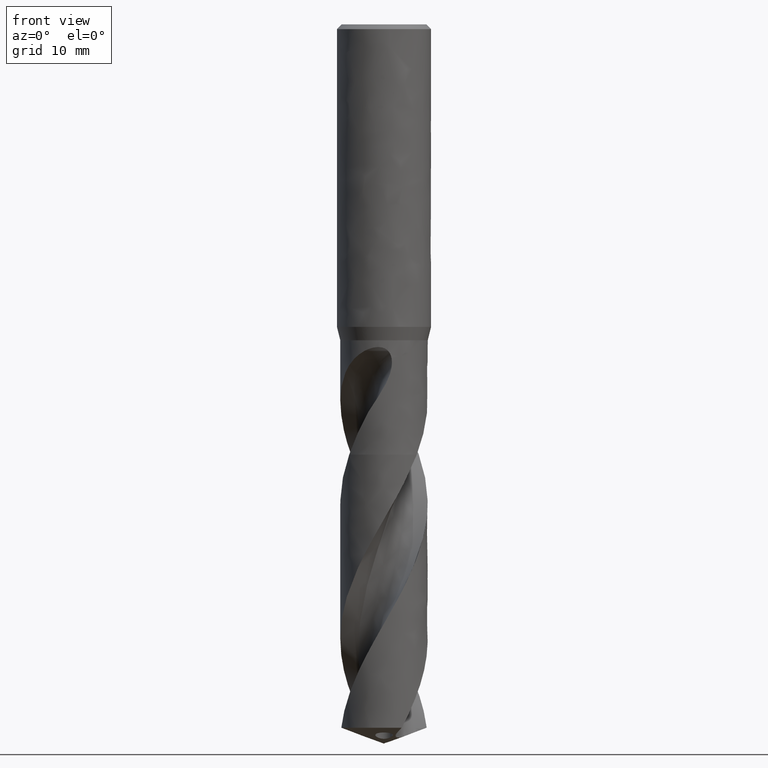
[diagram: clean part render]
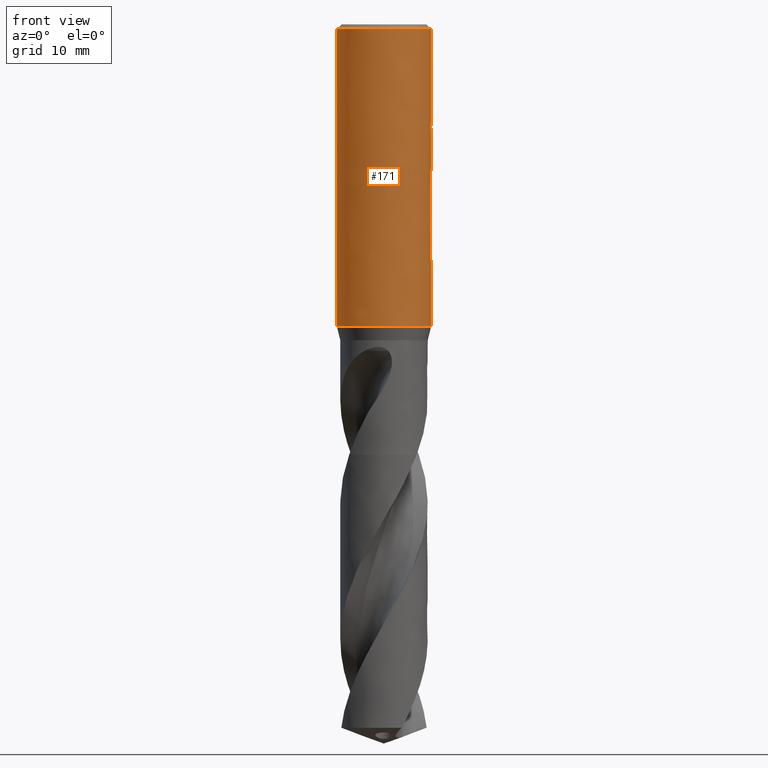
[diagram: same view with one face highlighted and labeled with its STEP entity id]
A machine part, front view. The second image highlights one B-rep face of the part: STEP entity #171.
In plain terms, the highlighted face is a freeform B-spline surface patch.
Its self-contained STEP definition (entity closure, byte-faithful):
#73 = VERTEX_POINT('', #74);
#74 = CARTESIAN_POINT('', (-7., 3.18408167778312E-15, -45.));
#82 = EDGE_CURVE('', #73, #73, #83, .T.);
#83 = CIRCLE('', #84, 7.);
#84 = AXIS2_PLACEMENT_3D('', #85, #86, #87);
#85 = CARTESIAN_POINT('', (1.68722975549459E-31, 2.75545529808154E-15, -45.));
#86 = DIRECTION('', (3.74939945665464E-33, 6.12323399573677E-17, -1.));
#87 = DIRECTION('', (-1., 6.12323399573677E-17, 0.));
#120 = VERTEX_POINT('', #121);
#121 = CARTESIAN_POINT('', (-7., 4.71489017671731E-16, -0.700000000000003));
#137 = EDGE_CURVE('', #120, #120, #138, .T.);
#138 = CIRCLE('', #139, 7.);
#139 = AXIS2_PLACEMENT_3D('', #140, #141, #142);
#140 = CARTESIAN_POINT('', (2.62457961965824E-33, 4.28626379701575E-17, -0.700000000000003));
#141 = DIRECTION('', (3.74939945665464E-33, 6.12323399573677E-17, -1.));
#142 = DIRECTION('', (-1., 6.12323399573677E-17, 0.));
#171 = ADVANCED_FACE('', (#172, #183), #351, .T.);
#172 = FACE_OUTER_BOUND('', #173, .T.);
#173 = EDGE_LOOP('', (#174, #180, #181, #182));
#174 = ORIENTED_EDGE('', *, *, #175, .T.);
#175 = EDGE_CURVE('', #73, #120, #176, .T.);
#176 = LINE('', #177, #178);
#177 = CARTESIAN_POINT('', (-7., 3.18408167778312E-15, -45.));
#178 = VECTOR('', #179, 44.3);
#179 = DIRECTION('', (0., -2.71259266011139E-15, 44.3));
#180 = ORIENTED_EDGE('', *, *, #137, .T.);
#181 = ORIENTED_EDGE('', *, *, #175, .F.);
#182 = ORIENTED_EDGE('', *, *, #82, .F.);
#183 = FACE_BOUND('', #184, .T.);
#184 = EDGE_LOOP('', (#185, #259, #267, #345));
#185 = ORIENTED_EDGE('', *, *, #186, .F.);
#186 = EDGE_CURVE('', #187, #189, #191, .T.);
#187 = VERTEX_POINT('', #188);
#188 = CARTESIAN_POINT('', (-4.06324993078201, 5.7, -18.5));
#189 = VERTEX_POINT('', #190);
#190 = CARTESIAN_POINT('', (4.06324993078201, 5.7, -18.5));
#191 = B_SPLINE_CURVE_WITH_KNOTS('', 3, (#192, #193, #194, #195, #196, #197, #198, #199, #200, #201, #202, #203, #204, #205, #206, #207, #208, #209, #210, #211, #212, #213, #214, #215, #216, #217, #218, #219, #220, #221, #222, #223, #224, #225, #226, #227, #228, #229, #230, #231, #232, #233, #234, #235, #236, #237, #238, #239, #240, #241, #242, #243, #244, #245, #246, #247, #248, #249, #250, #251, #252, #253, #254, #255, #256, #257, #258), .UNSPECIFIED., .F., .U., (4, 3, 3, 3, 3, 3, 3, 3, 3, 3, 3, 3, 3, 3, 3, 3, 3, 3, 3, 3, 3, 3, 4), (0., 0.137652612674859, 0.581674615493354, 1.02589785853412, 1.47034969570479, 1.91505817288417, 2.36004996586148, 2.80534752015793, 3.25096561594453, 3.69690793012529, 4.14316448342696, 4.58698529200485, 5.03080610058274, 5.47706265388441, 5.92300496806517, 6.36862306385177, 6.81392061814821, 7.25891241112552, 7.70362088830491, 8.14807272547558, 8.59229596851635, 9.03631797133484, 9.17397058400971), .UNSPECIFIED.);
#192 = CARTESIAN_POINT('', (-4.06324993078201, 5.7, -18.5));
#193 = CARTESIAN_POINT('', (-4.03108009970197, 5.7229322919139, -18.4766639302106));
#194 = CARTESIAN_POINT('', (-3.99861595897026, 5.74566363083592, -18.4535323516714));
#195 = CARTESIAN_POINT('', (-3.96586004453388, 5.76818464572433, -18.4306148004237));
#196 = CARTESIAN_POINT('', (-3.86020025029119, 5.84083002412971, -18.3566903262932));
#197 = CARTESIAN_POINT('', (-3.75143779387564, 5.91133058074139, -18.2849484386765));
#198 = CARTESIAN_POINT('', (-3.63968934440049, 5.9793529312341, -18.2157283919277));
#199 = CARTESIAN_POINT('', (-3.52789024814957, 6.04740611090384, -18.1464769731805));
#200 = CARTESIAN_POINT('', (-3.412991931501, 6.11304505514245, -18.0796822982564));
#201 = CARTESIAN_POINT('', (-3.29517046194851, 6.1759089716982, -18.0157115120181));
#202 = CARTESIAN_POINT('', (-3.17728836230352, 6.2388052375795, -17.951707806867));
#203 = CARTESIAN_POINT('', (-3.05634861998409, 6.29899246741486, -17.890460836824));
#204 = CARTESIAN_POINT('', (-2.93260217370229, 6.35608719974773, -17.8323608151023));
#205 = CARTESIAN_POINT('', (-2.80878427245867, 6.41321490031557, -17.774227244661));
#206 = CARTESIAN_POINT('', (-2.68200101594348, 6.46731667326961, -17.71917288053));
#207 = CARTESIAN_POINT('', (-2.55259435502097, 6.51799524844222, -17.6676019877691));
#208 = CARTESIAN_POINT('', (-2.42310525143483, 6.56870611002649, -17.615998240117));
#209 = CARTESIAN_POINT('', (-2.29080750306995, 6.61605884852133, -17.5678117433472));
#210 = CARTESIAN_POINT('', (-2.1561488099206, 6.65965632067288, -17.5234466333708));
#211 = CARTESIAN_POINT('', (-2.02139759052627, 6.70328374937825, -17.4790510393839));
#212 = CARTESIAN_POINT('', (-1.88407217752041, 6.74321678029959, -17.4384148918945));
#213 = CARTESIAN_POINT('', (-1.74473623348504, 6.77907777470982, -17.4019224788634));
#214 = CARTESIAN_POINT('', (-1.60529999033349, 6.81496458317735, -17.3654037972566));
#215 = CARTESIAN_POINT('', (-1.46361216577596, 6.84683279857773, -17.3329744656644));
#216 = CARTESIAN_POINT('', (-1.32035421695703, 6.87434831396867, -17.3049744737811));
#217 = CARTESIAN_POINT('', (-1.17699203794064, 6.90188384882538, -17.2769541099415));
#218 = CARTESIAN_POINT('', (-1.03179327426599, 6.925109275895, -17.2533197436505));
#219 = CARTESIAN_POINT('', (-0.885546959416218, 6.94376026247081, -17.2343403618247));
#220 = CARTESIAN_POINT('', (-0.739197590175888, 6.96242439170979, -17.2153476059278));
#221 = CARTESIAN_POINT('', (-0.591513672944381, 6.97654264270533, -17.2009807693389));
#222 = CARTESIAN_POINT('', (-0.443367564010626, 6.98594483253221, -17.1914130314609));
#223 = CARTESIAN_POINT('', (-0.296030061920882, 6.99529570359617, -17.1818975159355));
#224 = CARTESIAN_POINT('', (-0.147940269525964, 7., -17.1771103891362));
#225 = CARTESIAN_POINT('', (-6.73865229849339E-16, 7., -17.1771103891362));
#226 = CARTESIAN_POINT('', (0.147940269525962, 7., -17.1771103891362));
#227 = CARTESIAN_POINT('', (0.29603006192088, 6.99529570359617, -17.1818975159355));
#228 = CARTESIAN_POINT('', (0.443367564010624, 6.98594483253221, -17.1914130314609));
#229 = CARTESIAN_POINT('', (0.591513672944378, 6.97654264270533, -17.2009807693389));
#230 = CARTESIAN_POINT('', (0.739197590175884, 6.96242439170979, -17.2153476059278));
#231 = CARTESIAN_POINT('', (0.885546959416215, 6.94376026247081, -17.2343403618248));
#232 = CARTESIAN_POINT('', (1.03179327426598, 6.925109275895, -17.2533197436505));
#233 = CARTESIAN_POINT('', (1.17699203794064, 6.90188384882538, -17.2769541099415));
#234 = CARTESIAN_POINT('', (1.32035421695703, 6.87434831396867, -17.3049744737811));
#235 = CARTESIAN_POINT('', (1.46361216577595, 6.84683279857773, -17.3329744656644));
#236 = CARTESIAN_POINT('', (1.60529999033349, 6.81496458317735, -17.3654037972566));
#237 = CARTESIAN_POINT('', (1.74473623348503, 6.77907777470982, -17.4019224788634));
#238 = CARTESIAN_POINT('', (1.8840721775204, 6.74321678029959, -17.4384148918945));
#239 = CARTESIAN_POINT('', (2.02139759052626, 6.70328374937825, -17.4790510393839));
#240 = CARTESIAN_POINT('', (2.15614880992059, 6.65965632067288, -17.5234466333708));
#241 = CARTESIAN_POINT('', (2.29080750306994, 6.61605884852133, -17.5678117433471));
#242 = CARTESIAN_POINT('', (2.42310525143483, 6.5687061100265, -17.615998240117));
#243 = CARTESIAN_POINT('', (2.55259435502096, 6.51799524844222, -17.6676019877691));
#244 = CARTESIAN_POINT('', (2.68200101594348, 6.46731667326961, -17.71917288053));
#245 = CARTESIAN_POINT('', (2.80878427245867, 6.41321490031557, -17.774227244661));
#246 = CARTESIAN_POINT('', (2.93260217370229, 6.35608719974773, -17.8323608151023));
#247 = CARTESIAN_POINT('', (3.05634861998409, 6.29899246741486, -17.890460836824));
#248 = CARTESIAN_POINT('', (3.17728836230352, 6.2388052375795, -17.951707806867));
#249 = CARTESIAN_POINT('', (3.29517046194851, 6.1759089716982, -18.0157115120181));
#250 = CARTESIAN_POINT('', (3.412991931501, 6.11304505514245, -18.0796822982564));
#251 = CARTESIAN_POINT('', (3.52789024814956, 6.04740611090384, -18.1464769731805));
#252 = CARTESIAN_POINT('', (3.63968934440048, 5.9793529312341, -18.2157283919277));
#253 = CARTESIAN_POINT('', (3.75143779387564, 5.91133058074139, -18.2849484386765));
#254 = CARTESIAN_POINT('', (3.86020025029119, 5.84083002412971, -18.3566903262932));
#255 = CARTESIAN_POINT('', (3.96586004453388, 5.76818464572433, -18.4306148004237));
#256 = CARTESIAN_POINT('', (3.99861595897026, 5.74566363083592, -18.4535323516714));
#257 = CARTESIAN_POINT('', (4.03108009970197, 5.7229322919139, -18.4766639302106));
#258 = CARTESIAN_POINT('', (4.06324993078201, 5.7, -18.5));
#259 = ORIENTED_EDGE('', *, *, #260, .T.);
#260 = EDGE_CURVE('', #187, #261, #263, .T.);
#261 = VERTEX_POINT('', #262);
#262 = CARTESIAN_POINT('', (-4.06324993078201, 5.7, -26.5));
#263 = LINE('', #264, #265);
#264 = CARTESIAN_POINT('', (-4.06324993078201, 5.7, -18.5));
#265 = VECTOR('', #266, 8.);
#266 = DIRECTION('', (0., 8.88178419700125E-16, -8.));
#267 = ORIENTED_EDGE('', *, *, #268, .T.);
#268 = EDGE_CURVE('', #261, #269, #271, .T.);
#269 = VERTEX_POINT('', #270);
#270 = CARTESIAN_POINT('', (4.06324993078201, 5.7, -26.5));
#271 = B_SPLINE_CURVE_WITH_KNOTS('', 3, (#272, #273, #274, #275, #276, #277, #278, #279, #280, #281, #282, #283, #284, #285, #286, #287, #288, #289, #290, #291, #292, #293, #294, #295, #296, #297, #298, #299, #300, #301, #302, #303, #304, #305, #306, #307, #308, #309, #310, #311, #312, #313, #314, #315, #316, #317, #318, #319, #320, #321, #322, #323, #324, #325, #326, #327, #328, #329, #330, #331, #332, #333, #334, #335, #336, #337, #338, #339, #340, #341, #342, #343, #344), .UNSPECIFIED., .F., .U., (4, 3, 3, 3, 3, 3, 3, 3, 3, 3, 3, 3, 3, 3, 3, 3, 3, 3, 3, 3, 3, 3, 3, 3, 4), (0., 0.443065667120687, 0.885991413444208, 1.32875814304196, 1.77134482871166, 2.21372912601748, 2.65588845197263, 3.09780161615996, 3.53945099408801, 3.98082505360303, 4.27535517887829, 4.58709027809395, 4.88280283700067, 5.17967106949248, 5.47645142962782, 5.77314037145818, 6.0697361493131, 6.36623875183344, 6.81153829126186, 7.2565319483704, 7.70124213148334, 8.14569549946106, 8.58992009686663, 9.03394328676175, 9.17439583103418), .UNSPECIFIED.);
#272 = CARTESIAN_POINT('', (-4.06324993078201, 5.7, -26.5));
#273 = CARTESIAN_POINT('', (-3.95970414700307, 5.77381270153904, -26.5751123507814));
#274 = CARTESIAN_POINT('', (-3.85307330140329, 5.84556707051391, -26.6481301271283));
#275 = CARTESIAN_POINT('', (-3.74345786277871, 5.91494067845152, -26.7187252234427));
#276 = CARTESIAN_POINT('', (-3.63387704087281, 5.98429237810049, -26.7892980257207));
#277 = CARTESIAN_POINT('', (-3.52120975873986, 6.0513295136776, -26.8575155104877));
#278 = CARTESIAN_POINT('', (-3.40561057397174, 6.11570246320505, -26.9230218998342));
#279 = CARTESIAN_POINT('', (-3.29005289097682, 6.18005230191597, -26.988504771443));
#280 = CARTESIAN_POINT('', (-3.17144217842377, 6.24180729345365, -27.0513471073847));
#281 = CARTESIAN_POINT('', (-3.05000147476815, 6.30059449607041, -27.1111693993797));
#282 = CARTESIAN_POINT('', (-2.92861015301014, 6.35935779382222, -27.1709673656073));
#283 = CARTESIAN_POINT('', (-2.80424564049764, 6.4152247110733, -27.2278179536246));
#284 = CARTESIAN_POINT('', (-2.67721470958931, 6.46780653689946, -27.2813256083213));
#285 = CARTESIAN_POINT('', (-2.55024186805218, 6.52036431783218, -27.3348087947566));
#286 = CARTESIAN_POINT('', (-2.4204348072538, 6.56970881043612, -27.3850221152328));
#287 = CARTESIAN_POINT('', (-2.28819840684561, 6.61544768333256, -27.4315663304385));
#288 = CARTESIAN_POINT('', (-2.15602925430717, 6.66116329605437, -27.4780868759184));
#289 = CARTESIAN_POINT('', (-2.02123656744856, 6.70334313973294, -27.5210093966802));
#290 = CARTESIAN_POINT('', (-1.88433414011935, 6.74160847634907, -27.5599484861153));
#291 = CARTESIAN_POINT('', (-1.74750792998506, 6.77985250964226, -27.5988658971315));
#292 = CARTESIAN_POINT('', (-1.6083508927132, 6.81424694704305, -27.6338659309077));
#293 = CARTESIAN_POINT('', (-1.46748954508531, 6.84444843906842, -27.6645991924715));
#294 = CARTESIAN_POINT('', (-1.3267122802388, 6.87463190325652, -27.6953141087748));
#295 = CARTESIAN_POINT('', (-1.18398409041474, 6.9006789527923, -27.7218197789475));
#296 = CARTESIAN_POINT('', (-1.04003756564183, 6.92230610866454, -27.7438277326521));
#297 = CARTESIAN_POINT('', (-0.89618077523909, 6.94391978245227, -27.7658219668878));
#298 = CARTESIAN_POINT('', (-0.75083714470352, 6.96115817953796, -27.7833638872051));
#299 = CARTESIAN_POINT('', (-0.60482598024642, 6.97382144405916, -27.7962501188011));
#300 = CARTESIAN_POINT('', (-0.507392328150074, 6.98227167534352, -27.8048491366283));
#301 = CARTESIAN_POINT('', (-0.409556862008332, 6.98869673890838, -27.8113873288122));
#302 = CARTESIAN_POINT('', (-0.311577914129586, 6.99306221933043, -27.8158296739636));
#303 = CARTESIAN_POINT('', (-0.207875527117457, 6.99768270924202, -27.8205315186568));
#304 = CARTESIAN_POINT('', (-0.103911699738554, 7., -27.8228896108638));
#305 = CARTESIAN_POINT('', (-6.73865229849338E-16, 7., -27.8228896108638));
#306 = CARTESIAN_POINT('', (0.0985708529689039, 7., -27.8228896108638));
#307 = CARTESIAN_POINT('', (0.197186228119405, 6.99791511081716, -27.8207680122178));
#308 = CARTESIAN_POINT('', (0.295578376007079, 6.99375674610127, -27.8165364295402));
#309 = CARTESIAN_POINT('', (0.394355050026195, 6.98958213008961, -27.8122883094239));
#310 = CARTESIAN_POINT('', (0.492996015126384, 6.98331407184112, -27.8059098870107));
#311 = CARTESIAN_POINT('', (0.591236291998922, 6.97498671303562, -27.7974359051263));
#312 = CARTESIAN_POINT('', (0.68944748996141, 6.96666181911036, -27.7889644315222));
#313 = CARTESIAN_POINT('', (0.787345716272394, 6.95627155863244, -27.778391225645));
#314 = CARTESIAN_POINT('', (0.884677634648972, 6.94387107331004, -27.7657724001045));
#315 = CARTESIAN_POINT('', (0.981979571530164, 6.93147440775303, -27.7531574615855));
#316 = CARTESIAN_POINT('', (1.0787999146218, 6.91705818939719, -27.7384874112078));
#317 = CARTESIAN_POINT('', (1.17490159172366, 6.90069606994579, -27.7218371974894));
#318 = CARTESIAN_POINT('', (1.27097309171737, 6.88433908840106, -27.7051922121428));
#319 = CARTESIAN_POINT('', (1.36640667684814, 6.86602397749929, -27.686554619886));
#320 = CARTESIAN_POINT('', (1.46098503373963, 6.84583981197259, -27.6660150638251));
#321 = CARTESIAN_POINT('', (1.55553367891334, 6.82566198728589, -27.6454819602498));
#322 = CARTESIAN_POINT('', (1.64930313893897, 6.80360041529903, -27.6230319414954));
#323 = CARTESIAN_POINT('', (1.74209812044936, 6.77975620053751, -27.5987678922745));
#324 = CARTESIAN_POINT('', (1.88146135765741, 6.74394599934169, -27.5623271667938));
#325 = CARTESIAN_POINT('', (2.01881656176525, 6.70406185494877, -27.5217407665972));
#326 = CARTESIAN_POINT('', (2.15359932213875, 6.66048121081981, -27.4773927809411));
#327 = CARTESIAN_POINT('', (2.28828949839803, 6.616930502829, -27.4330752585205));
#328 = CARTESIAN_POINT('', (2.42062065776446, 6.56962246287049, -27.3849342473117));
#329 = CARTESIAN_POINT('', (2.55014439422912, 6.51895417751821, -27.333373825548));
#330 = CARTESIAN_POINT('', (2.67958562027928, 6.46831816934801, -27.2818462492834));
#331 = CARTESIAN_POINT('', (2.80640483736632, 6.41425685848786, -27.2268330596783));
#332 = CARTESIAN_POINT('', (2.93025947098781, 6.35716756367854, -27.1687385712208));
#333 = CARTESIAN_POINT('', (3.05404257994967, 6.30011123729567, -27.1106776316777));
#334 = CARTESIAN_POINT('', (3.17501991758404, 6.23996035931803, -27.0494676535539));
#335 = CARTESIAN_POINT('', (3.29294002161901, 6.17709851095319, -26.985498971922));
#336 = CARTESIAN_POINT('', (3.41079942941088, 6.11426901905598, -26.9215632164707));
#337 = CARTESIAN_POINT('', (3.52573623692202, 6.04866255633922, -26.8548015949834));
#338 = CARTESIAN_POINT('', (3.63757395443044, 5.98064007661801, -26.7855814167308));
#339 = CARTESIAN_POINT('', (3.74936096570515, 5.91264843768854, -26.7163926222958));
#340 = CARTESIAN_POINT('', (3.85816223900028, 5.84217679499217, -26.6446801576931));
#341 = CARTESIAN_POINT('', (3.96386077570598, 5.76955871369897, -26.5707834613057));
#342 = CARTESIAN_POINT('', (3.99729512946056, 5.74658830469799, -26.5474086032867));
#343 = CARTESIAN_POINT('', (4.03042574723616, 5.7233987476352, -26.5238107385799));
#344 = CARTESIAN_POINT('', (4.06324993078201, 5.7, -26.5));
#345 = ORIENTED_EDGE('', *, *, #346, .F.);
#346 = EDGE_CURVE('', #189, #269, #347, .T.);
#347 = LINE('', #348, #349);
#348 = CARTESIAN_POINT('', (4.06324993078201, 5.7, -18.5));
#349 = VECTOR('', #350, 8.);
#350 = DIRECTION('', (-1.77635683940025E-15, 8.88178419700125E-16, -8.));
#351 = (
   BOUNDED_SURFACE ()
   B_SPLINE_SURFACE (1, 2, ((#352, #353, #354, #355, #356, #357, #358, #359, #360), (#361, #362, #363, #364, #365, #366, #367, #368, #369)), .UNSPECIFIED., .F., .T., .U.)
   B_SPLINE_SURFACE_WITH_KNOTS ((2, 2), (3, 2, 2, 2, 3), (0., 1.), (0., 10.9955742875643, 21.9911485751286, 32.9867228626928, 43.9822971502571), .UNSPECIFIED.)
   GEOMETRIC_REPRESENTATION_ITEM ()
   RATIONAL_B_SPLINE_SURFACE (((1., 0.707106781186548, 1., 0.707106781186548, 1., 0.707106781186548, 1., 0.707106781186548, 1.), (1., 0.707106781186548, 1., 0.707106781186548, 1., 0.707106781186548, 1., 0.707106781186548, 1.)))
   REPRESENTATION_ITEM ('')
   SURFACE ()
);
#352 = CARTESIAN_POINT('', (-7., 3.18408167778312E-15, -45.));
#353 = CARTESIAN_POINT('', (-7., 7., -45.));
#354 = CARTESIAN_POINT('', (1.4791141972894E-31, 7., -45.));
#355 = CARTESIAN_POINT('', (7., 7., -45.));
#356 = CARTESIAN_POINT('', (7., 3.18408167778312E-15, -45.));
#357 = CARTESIAN_POINT('', (7., -7., -45.));
#358 = CARTESIAN_POINT('', (8.57252759403147E-16, -7., -45.));
#359 = CARTESIAN_POINT('', (-7., -7., -45.));
#360 = CARTESIAN_POINT('', (-7., 3.18408167778312E-15, -45.));
#361 = CARTESIAN_POINT('', (-7., 4.71489017671731E-16, -0.700000000000003));
#362 = CARTESIAN_POINT('', (-7., 7., -0.700000000000002));
#363 = CARTESIAN_POINT('', (0., 7., -0.700000000000002));
#364 = CARTESIAN_POINT('', (7., 7., -0.700000000000002));
#365 = CARTESIAN_POINT('', (7., 4.71489017671731E-16, -0.700000000000003));
#366 = CARTESIAN_POINT('', (7., -7., -0.700000000000003));
#367 = CARTESIAN_POINT('', (8.57252759403147E-16, -7., -0.700000000000003));
#368 = CARTESIAN_POINT('', (-7., -7., -0.700000000000003));
#369 = CARTESIAN_POINT('', (-7., 4.71489017671731E-16, -0.700000000000003));